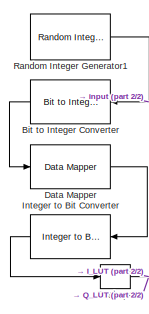
[diagram: root canvas - part 1/2, middle left region]
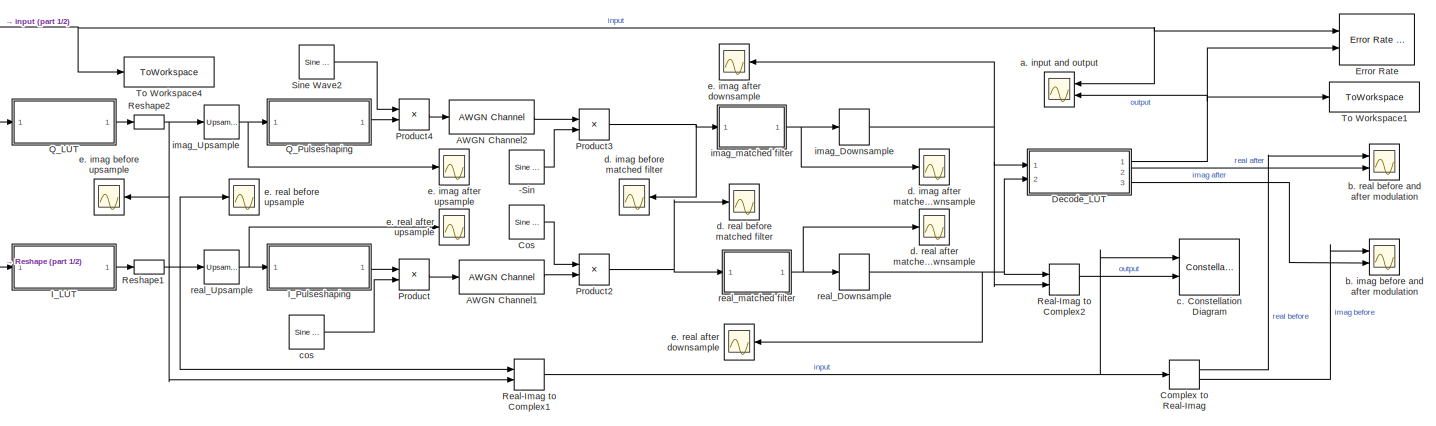
[diagram: root canvas - part 2/2, most of the canvas]
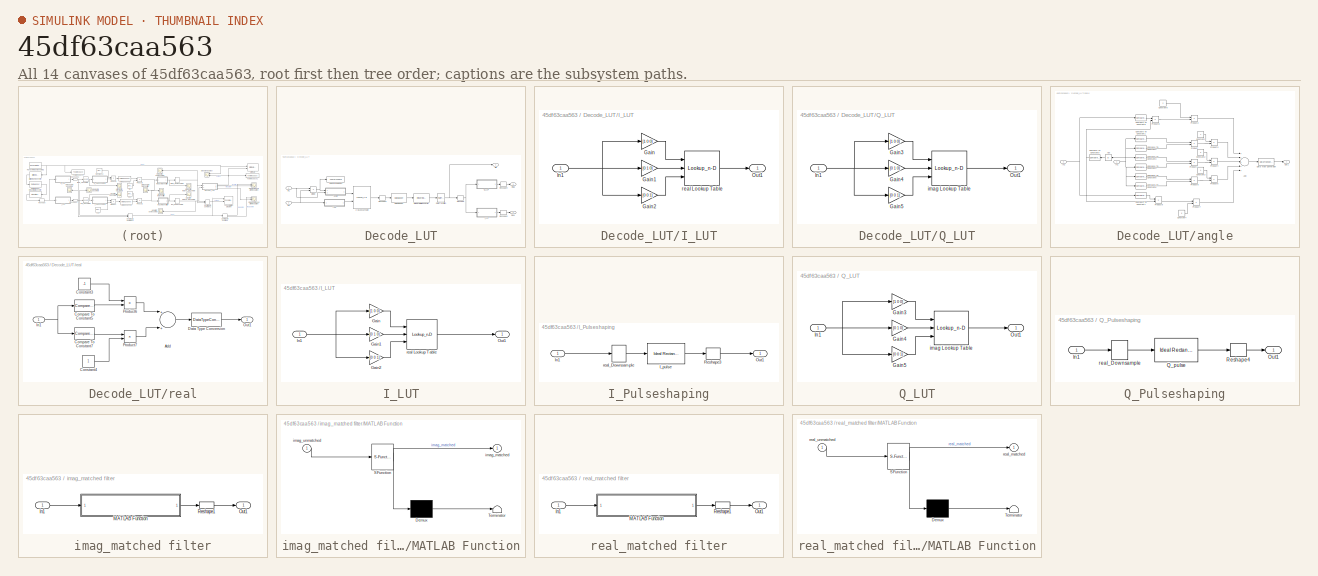
[diagram: thumbnail index - all 14 canvases of the model, root first then tree order]
MODEL slx_45df63caa563
KIND model
CONFIG AbsTol = auto
CONFIG EnableMultiTasking = off
CONFIG FixedStep = auto
CONFIG MaxStep = auto
CONFIG MinStep = auto
CONFIG RelTol = 1e-3
CONFIG SampleTimeConstraint = Unconstrained
CONFIG Solver = VariableStepAuto
CONFIG SolverName = VariableStepAuto
CONFIG StartTime = 0.0
CONFIG StopTime = 10
BLOCK [Reference] -Sin  REF=dspsrcs4/Sine Wave
  Ports = [0, 1]
  SourceBlock = dspsrcs4/Sine Wave
  SourceProductBaseCode = DS
  SourceProductName = DSP System Toolbox
  SourceType = Sine Wave
BLOCK [Reference] AWGN Channel1  REF=commchan3/AWGN
Channel
  Ports = [1, 1]
  SourceBlock = commchan3/AWGN\nChannel
  SourceProductBaseCode = CM
  SourceProductName = Communications Toolbox
  SourceType = AWGN Channel
  UserDataPersistent = on
BLOCK [Reference] AWGN Channel2  REF=commchan3/AWGN
Channel
  Ports = [1, 1]
  SourceBlock = commchan3/AWGN\nChannel
  SourceProductBaseCode = CM
  SourceProductName = Communications Toolbox
  SourceType = AWGN Channel
  UserDataPersistent = on
BLOCK [Reference] Bit to Integer Converter  REF=commutil2/Bit to Integer
Converter
  Ports = [1, 1]
  SourceBlock = commutil2/Bit to Integer\nConverter
  SourceProductBaseCode = CM
  SourceProductName = Communications Toolbox
  SourceType = Bit to Integer Converter
BLOCK [ComplexToRealImag] Complex to Real-Imag
  Ports = [1, 2]
BLOCK [Reference] Cos  REF=dspsrcs4/Sine Wave
  Ports = [0, 1]
  SourceBlock = dspsrcs4/Sine Wave
  SourceProductBaseCode = DS
  SourceProductName = DSP System Toolbox
  SourceType = Sine Wave
BLOCK [Reference] Data Mapper  REF=commutil2/Data Mapper
  Ports = [1, 1]
  SourceBlock = commutil2/Data Mapper
  SourceProductBaseCode = CM
  SourceProductName = Communications Toolbox
  SourceType = Data Mapper
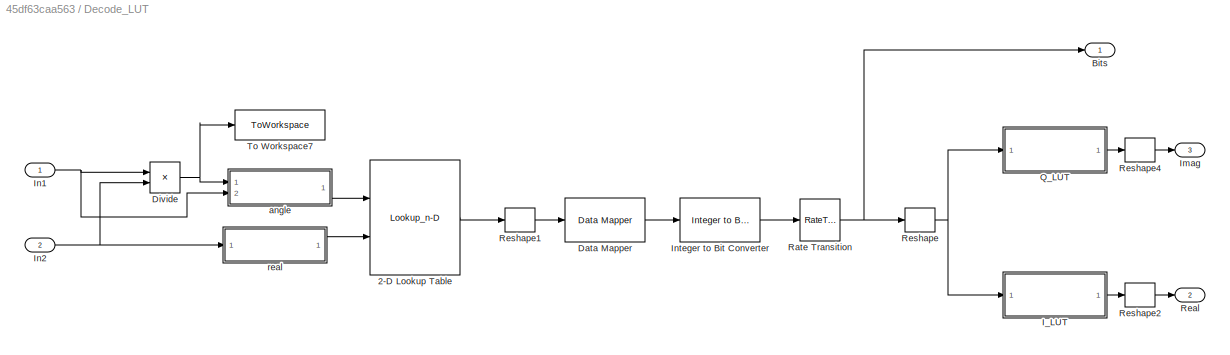
BLOCK [SubSystem] Decode_LUT
  Ports = [2, 3]
  RequestExecContextInheritance = off
BLOCK [Lookup_n-D] Decode_LUT/2-D Lookup Table
  BreakpointsForDimension1 = [-2,-1,0,1,2]
  BreakpointsForDimension2 = [-1,1]
  InternalRulePriority = Speed
  Ports = [2, 1]
  RndMeth = Simplest
  Table = reshape([5,2,6,7,3,5,4,0,1,3],5,2)
BLOCK [Outport] Decode_LUT/Bits
  IconDisplay = Port number
BLOCK [Reference] Decode_LUT/Data Mapper  REF=commutil2/Data Mapper
  Ports = [1, 1]
  SourceBlock = commutil2/Data Mapper
  SourceProductBaseCode = CM
  SourceProductName = Communications Toolbox
  SourceType = Data Mapper
BLOCK [Product] Decode_LUT/Divide
  InputSameDT = off
  Inputs = */
  OutDataTypeStr = Inherit: Inherit via internal rule
  Ports = [2, 1]
  RndMeth = Floor
  SaturateOnIntegerOverflow = off
BLOCK [SubSystem] Decode_LUT/I_LUT
  Ports = [1, 1]
  RequestExecContextInheritance = off
BLOCK [Gain] Decode_LUT/I_LUT/Gain
  Gain = [1 0 0]
  Multiplication = Matrix(K*u)
  OutDataTypeStr = Inherit: Inherit via internal rule
  ParamDataTypeStr = Inherit: Inherit via internal rule
  SaturateOnIntegerOverflow = off
BLOCK [Gain] Decode_LUT/I_LUT/Gain1
  Gain = [0 1 0]
  Multiplication = Matrix(K*u)
  OutDataTypeStr = Inherit: Inherit via internal rule
  ParamDataTypeStr = Inherit: Inherit via internal rule
  SaturateOnIntegerOverflow = off
BLOCK [Gain] Decode_LUT/I_LUT/Gain2
  Gain = [0 0 1]
  Multiplication = Matrix(K*u)
  OutDataTypeStr = Inherit: Inherit via internal rule
  ParamDataTypeStr = Inherit: Inherit via internal rule
  SaturateOnIntegerOverflow = off
BLOCK [Inport] Decode_LUT/I_LUT/In1
  IconDisplay = Port number
BLOCK [Outport] Decode_LUT/I_LUT/Out1
  IconDisplay = Port number
BLOCK [Lookup_n-D] Decode_LUT/I_LUT/real Lookup Table
  BreakpointsForDimension1 = [0,1]
  BreakpointsForDimension2 = [0,1]
  BreakpointsForDimension3 = [0,1]
  InternalRulePriority = Speed
  NumberOfTableDimensions = 3
  Ports = [3, 1]
  RndMeth = Simplest
  Table = reshape([1,sqrt(2)/2,-sqrt(2)/2,-1,sqrt(2)/2,0,0,-sqrt(2)/2],2,2,2)
BLOCK [Outport] Decode_LUT/Imag
  IconDisplay = Port number
  Port = 3
BLOCK [Inport] Decode_LUT/In1
  IconDisplay = Port number
BLOCK [Inport] Decode_LUT/In2
  IconDisplay = Port number
  Port = 2
BLOCK [Reference] Decode_LUT/Integer to Bit Converter  REF=commutil2/Integer to Bit
Converter
  Ports = [1, 1]
  SourceBlock = commutil2/Integer to Bit\nConverter
  SourceProductBaseCode = CM
  SourceProductName = Communications Toolbox
  SourceType = Integer to Bit Converter
BLOCK [SubSystem] Decode_LUT/Q_LUT
  Ports = [1, 1]
  RequestExecContextInheritance = off
BLOCK [Gain] Decode_LUT/Q_LUT/Gain3
  Gain = [1 0 0]
  Multiplication = Matrix(K*u)
  OutDataTypeStr = Inherit: Inherit via internal rule
  ParamDataTypeStr = Inherit: Inherit via internal rule
  SaturateOnIntegerOverflow = off
BLOCK [Gain] Decode_LUT/Q_LUT/Gain4
  Gain = [0 1 0]
  Multiplication = Matrix(K*u)
  OutDataTypeStr = Inherit: Inherit via internal rule
  ParamDataTypeStr = Inherit: Inherit via internal rule
  SaturateOnIntegerOverflow = off
BLOCK [Gain] Decode_LUT/Q_LUT/Gain5
  Gain = [0 0 1]
  Multiplication = Matrix(K*u)
  OutDataTypeStr = Inherit: Inherit via internal rule
  ParamDataTypeStr = Inherit: Inherit via internal rule
  SaturateOnIntegerOverflow = off
BLOCK [Inport] Decode_LUT/Q_LUT/In1
  IconDisplay = Port number
BLOCK [Outport] Decode_LUT/Q_LUT/Out1
  IconDisplay = Port number
BLOCK [Lookup_n-D] Decode_LUT/Q_LUT/imag Lookup Table
  BreakpointsForDimension1 = [0,1]
  BreakpointsForDimension2 = [0,1]
  BreakpointsForDimension3 = [0,1]
  InternalRulePriority = Speed
  NumberOfTableDimensions = 3
  Ports = [3, 1]
  RndMeth = Simplest
  Table = reshape([0,-sqrt(2)/2,sqrt(2)/2,0,sqrt(2)/2,-1,1,-sqrt(2)/2],2,2,2)
BLOCK [RateTransition] Decode_LUT/Rate Transition
  OutPortSampleTime = 300
BLOCK [Outport] Decode_LUT/Real
  IconDisplay = Port number
  Port = 2
BLOCK [Reshape] Decode_LUT/Reshape
  OutputDimensionality = Customize
  OutputDimensions = [3,100]
  Ports = [1, 1]
BLOCK [Reshape] Decode_LUT/Reshape1
  OutputDimensionality = Customize
  OutputDimensions = [100,1]
  Ports = [1, 1]
BLOCK [Reshape] Decode_LUT/Reshape2
  OutputDimensionality = Customize
  OutputDimensions = [100,1]
  Ports = [1, 1]
BLOCK [Reshape] Decode_LUT/Reshape4
  OutputDimensionality = Customize
  OutputDimensions = [100,1]
  Ports = [1, 1]
BLOCK [ToWorkspace] Decode_LUT/To Workspace7
  FixptAsFi = on
  MaxDataPoints = inf
  Ports = [1]
  SampleTime = -1
  Save2DSignal = 2-D array (concatenate along first dimension)
  VariableName = angle
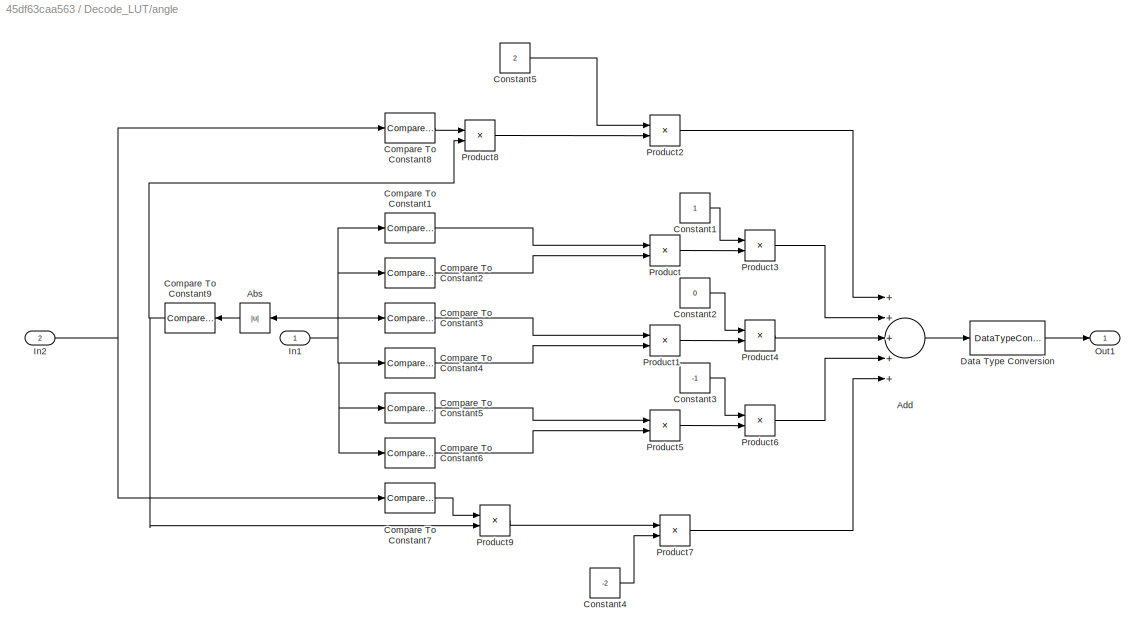
BLOCK [SubSystem] Decode_LUT/angle
  Ports = [2, 1]
  RequestExecContextInheritance = off
BLOCK [Abs] Decode_LUT/angle/Abs
  SaturateOnIntegerOverflow = off
BLOCK [Sum] Decode_LUT/angle/Add
  InputSameDT = off
  Inputs = +++++
  OutDataTypeStr = Inherit: Inherit via internal rule
  Ports = [5, 1]
  SaturateOnIntegerOverflow = off
BLOCK [Reference] Decode_LUT/angle/Compare To Constant1  REF=simulink/Logic and Bit
Operations/Compare
To Constant
  Ports = [1, 1]
  SourceBlock = simulink/Logic and Bit\nOperations/Compare\nTo Constant
  SourceProductBaseCode = SL
  SourceProductName = Simulink
  SourceType = Compare To Constant
BLOCK [Reference] Decode_LUT/angle/Compare To Constant2  REF=simulink/Logic and Bit
Operations/Compare
To Constant
  Ports = [1, 1]
  SourceBlock = simulink/Logic and Bit\nOperations/Compare\nTo Constant
  SourceProductBaseCode = SL
  SourceProductName = Simulink
  SourceType = Compare To Constant
BLOCK [Reference] Decode_LUT/angle/Compare To Constant3  REF=simulink/Logic and Bit
Operations/Compare
To Constant
  Ports = [1, 1]
  SourceBlock = simulink/Logic and Bit\nOperations/Compare\nTo Constant
  SourceProductBaseCode = SL
  SourceProductName = Simulink
  SourceType = Compare To Constant
BLOCK [Reference] Decode_LUT/angle/Compare To Constant4  REF=simulink/Logic and Bit
Operations/Compare
To Constant
  Ports = [1, 1]
  SourceBlock = simulink/Logic and Bit\nOperations/Compare\nTo Constant
  SourceProductBaseCode = SL
  SourceProductName = Simulink
  SourceType = Compare To Constant
BLOCK [Reference] Decode_LUT/angle/Compare To Constant5  REF=simulink/Logic and Bit
Operations/Compare
To Constant
  Ports = [1, 1]
  SourceBlock = simulink/Logic and Bit\nOperations/Compare\nTo Constant
  SourceProductBaseCode = SL
  SourceProductName = Simulink
  SourceType = Compare To Constant
BLOCK [Reference] Decode_LUT/angle/Compare To Constant6  REF=simulink/Logic and Bit
Operations/Compare
To Constant
  Ports = [1, 1]
  SourceBlock = simulink/Logic and Bit\nOperations/Compare\nTo Constant
  SourceProductBaseCode = SL
  SourceProductName = Simulink
  SourceType = Compare To Constant
BLOCK [Reference] Decode_LUT/angle/Compare To Constant7  REF=simulink/Logic and Bit
Operations/Compare
To Constant
  Ports = [1, 1]
  SourceBlock = simulink/Logic and Bit\nOperations/Compare\nTo Constant
  SourceProductBaseCode = SL
  SourceProductName = Simulink
  SourceType = Compare To Constant
BLOCK [Reference] Decode_LUT/angle/Compare To Constant8  REF=simulink/Logic and Bit
Operations/Compare
To Constant
  Ports = [1, 1]
  SourceBlock = simulink/Logic and Bit\nOperations/Compare\nTo Constant
  SourceProductBaseCode = SL
  SourceProductName = Simulink
  SourceType = Compare To Constant
BLOCK [Reference] Decode_LUT/angle/Compare To Constant9  REF=simulink/Logic and Bit
Operations/Compare
To Constant
  Ports = [1, 1]
  SourceBlock = simulink/Logic and Bit\nOperations/Compare\nTo Constant
  SourceProductBaseCode = SL
  SourceProductName = Simulink
  SourceType = Compare To Constant
BLOCK [Constant] Decode_LUT/angle/Constant1
BLOCK [Constant] Decode_LUT/angle/Constant2
  Value = 0
BLOCK [Constant] Decode_LUT/angle/Constant3
  Value = -1
BLOCK [Constant] Decode_LUT/angle/Constant4
  Value = -2
BLOCK [Constant] Decode_LUT/angle/Constant5
  Value = 2
BLOCK [DataTypeConversion] Decode_LUT/angle/Data Type Conversion
  OutDataTypeStr = double
  RndMeth = Floor
  SaturateOnIntegerOverflow = off
BLOCK [Inport] Decode_LUT/angle/In1
  IconDisplay = Port number
BLOCK [Inport] Decode_LUT/angle/In2
  IconDisplay = Port number
  Port = 2
BLOCK [Outport] Decode_LUT/angle/Out1
  IconDisplay = Port number
BLOCK [Product] Decode_LUT/angle/Product
  InputSameDT = off
  OutDataTypeStr = Inherit: Inherit via internal rule
  Ports = [2, 1]
  RndMeth = Floor
  SaturateOnIntegerOverflow = off
BLOCK [Product] Decode_LUT/angle/Product1
  InputSameDT = off
  OutDataTypeStr = Inherit: Inherit via internal rule
  Ports = [2, 1]
  RndMeth = Floor
  SaturateOnIntegerOverflow = off
BLOCK [Product] Decode_LUT/angle/Product2
  InputSameDT = off
  OutDataTypeStr = Inherit: Inherit via internal rule
  Ports = [2, 1]
  RndMeth = Floor
  SaturateOnIntegerOverflow = off
BLOCK [Product] Decode_LUT/angle/Product3
  InputSameDT = off
  OutDataTypeStr = Inherit: Inherit via internal rule
  Ports = [2, 1]
  RndMeth = Floor
  SaturateOnIntegerOverflow = off
BLOCK [Product] Decode_LUT/angle/Product4
  InputSameDT = off
  OutDataTypeStr = Inherit: Inherit via internal rule
  Ports = [2, 1]
  RndMeth = Floor
  SaturateOnIntegerOverflow = off
BLOCK [Product] Decode_LUT/angle/Product5
  InputSameDT = off
  OutDataTypeStr = Inherit: Inherit via internal rule
  Ports = [2, 1]
  RndMeth = Floor
  SaturateOnIntegerOverflow = off
BLOCK [Product] Decode_LUT/angle/Product6
  InputSameDT = off
  OutDataTypeStr = Inherit: Inherit via internal rule
  Ports = [2, 1]
  RndMeth = Floor
  SaturateOnIntegerOverflow = off
BLOCK [Product] Decode_LUT/angle/Product7
  InputSameDT = off
  OutDataTypeStr = Inherit: Inherit via internal rule
  Ports = [2, 1]
  RndMeth = Floor
  SaturateOnIntegerOverflow = off
BLOCK [Product] Decode_LUT/angle/Product8
  InputSameDT = off
  OutDataTypeStr = Inherit: Inherit via internal rule
  Ports = [2, 1]
  RndMeth = Floor
  SaturateOnIntegerOverflow = off
BLOCK [Product] Decode_LUT/angle/Product9
  InputSameDT = off
  OutDataTypeStr = Inherit: Inherit via internal rule
  Ports = [2, 1]
  RndMeth = Floor
  SaturateOnIntegerOverflow = off
BLOCK [SubSystem] Decode_LUT/real
  Ports = [1, 1]
  RequestExecContextInheritance = off
BLOCK [Sum] Decode_LUT/real/Add
  InputSameDT = off
  OutDataTypeStr = Inherit: Inherit via internal rule
  Ports = [2, 1]
  SaturateOnIntegerOverflow = off
BLOCK [Reference] Decode_LUT/real/Compare To Constant5  REF=simulink/Logic and Bit
Operations/Compare
To Constant
  Ports = [1, 1]
  SourceBlock = simulink/Logic and Bit\nOperations/Compare\nTo Constant
  SourceProductBaseCode = SL
  SourceProductName = Simulink
  SourceType = Compare To Constant
BLOCK [Reference] Decode_LUT/real/Compare To Constant7  REF=simulink/Logic and Bit
Operations/Compare
To Constant
  Ports = [1, 1]
  SourceBlock = simulink/Logic and Bit\nOperations/Compare\nTo Constant
  SourceProductBaseCode = SL
  SourceProductName = Simulink
  SourceType = Compare To Constant
BLOCK [Constant] Decode_LUT/real/Constant3
  Value = -1
BLOCK [Constant] Decode_LUT/real/Constant4
BLOCK [DataTypeConversion] Decode_LUT/real/Data Type Conversion
  OutDataTypeStr = double
  RndMeth = Floor
  SaturateOnIntegerOverflow = off
BLOCK [Inport] Decode_LUT/real/In1
  IconDisplay = Port number
BLOCK [Outport] Decode_LUT/real/Out1
  IconDisplay = Port number
BLOCK [Product] Decode_LUT/real/Product6
  InputSameDT = off
  OutDataTypeStr = Inherit: Inherit via internal rule
  Ports = [2, 1]
  RndMeth = Floor
  SaturateOnIntegerOverflow = off
BLOCK [Product] Decode_LUT/real/Product7
  InputSameDT = off
  OutDataTypeStr = Inherit: Inherit via internal rule
  Ports = [2, 1]
  RndMeth = Floor
  SaturateOnIntegerOverflow = off
BLOCK [Reference] Error Rate  REF=commsink2/Error Rate
Calculation
  Ports = [2]
  SourceBlock = commsink2/Error Rate\nCalculation
  SourceProductBaseCode = CM
  SourceProductName = Communications Toolbox
  SourceType = Error Rate Calculation
BLOCK [SubSystem] I_LUT
  Ports = [1, 1]
  RequestExecContextInheritance = off
BLOCK [Gain] I_LUT/Gain
  Gain = [1 0 0]
  Multiplication = Matrix(K*u)
  OutDataTypeStr = Inherit: Inherit via internal rule
  ParamDataTypeStr = Inherit: Inherit via internal rule
  SaturateOnIntegerOverflow = off
BLOCK [Gain] I_LUT/Gain1
  Gain = [0 1 0]
  Multiplication = Matrix(K*u)
  OutDataTypeStr = Inherit: Inherit via internal rule
  ParamDataTypeStr = Inherit: Inherit via internal rule
  SaturateOnIntegerOverflow = off
BLOCK [Gain] I_LUT/Gain2
  Gain = [0 0 1]
  Multiplication = Matrix(K*u)
  OutDataTypeStr = Inherit: Inherit via internal rule
  ParamDataTypeStr = Inherit: Inherit via internal rule
  SaturateOnIntegerOverflow = off
BLOCK [Inport] I_LUT/In1
  IconDisplay = Port number
BLOCK [Outport] I_LUT/Out1
  IconDisplay = Port number
BLOCK [Lookup_n-D] I_LUT/real Lookup Table
  BreakpointsForDimension1 = [0,1]
  BreakpointsForDimension2 = [0,1]
  BreakpointsForDimension3 = [0,1]
  InternalRulePriority = Speed
  NumberOfTableDimensions = 3
  Ports = [3, 1]
  RndMeth = Simplest
  Table = reshape([1,sqrt(2)/2,-sqrt(2)/2,-1,sqrt(2)/2,0,0,-sqrt(2)/2],2,2,2)
BLOCK [SubSystem] I_Pulseshaping
  Ports = [1, 1]
  RequestExecContextInheritance = off
BLOCK [Reference] I_Pulseshaping/I_pulse  REF=commfilt2/Ideal Rectangular
Pulse Filter
  Ports = [1, 1]
  SourceBlock = commfilt2/Ideal Rectangular\nPulse Filter
  SourceProductBaseCode = CM
  SourceProductName = Communications Toolbox
  SourceType = Ideal Rectangular Pulse Filter
  UserDataPersistent = on
BLOCK [Inport] I_Pulseshaping/In1
  IconDisplay = Port number
BLOCK [Outport] I_Pulseshaping/Out1
  IconDisplay = Port number
BLOCK [Reshape] I_Pulseshaping/Reshape3
  OutputDimensionality = Customize
  OutputDimensions = [8000,1]
  Ports = [1, 1]
BLOCK [DownSample] I_Pulseshaping/real_Downsample
  N = 80
BLOCK [Reference] Integer to Bit Converter  REF=commutil2/Integer to Bit
Converter
  Ports = [1, 1]
  SourceBlock = commutil2/Integer to Bit\nConverter
  SourceProductBaseCode = CM
  SourceProductName = Communications Toolbox
  SourceType = Integer to Bit Converter
BLOCK [Product] Product
  InputSameDT = off
  OutDataTypeStr = Inherit: Inherit via internal rule
  Ports = [2, 1]
  RndMeth = Floor
  SaturateOnIntegerOverflow = off
BLOCK [Product] Product2
  InputSameDT = off
  OutDataTypeStr = Inherit: Inherit via internal rule
  Ports = [2, 1]
  RndMeth = Floor
  SaturateOnIntegerOverflow = off
BLOCK [Product] Product3
  InputSameDT = off
  OutDataTypeStr = Inherit: Inherit via internal rule
  Ports = [2, 1]
  RndMeth = Floor
  SaturateOnIntegerOverflow = off
BLOCK [Product] Product4
  InputSameDT = off
  OutDataTypeStr = Inherit: Inherit via internal rule
  Ports = [2, 1]
  RndMeth = Floor
  SaturateOnIntegerOverflow = off
BLOCK [SubSystem] Q_LUT
  Ports = [1, 1]
  RequestExecContextInheritance = off
BLOCK [Gain] Q_LUT/Gain3
  Gain = [1 0 0]
  Multiplication = Matrix(K*u)
  OutDataTypeStr = Inherit: Inherit via internal rule
  ParamDataTypeStr = Inherit: Inherit via internal rule
  SaturateOnIntegerOverflow = off
BLOCK [Gain] Q_LUT/Gain4
  Gain = [0 1 0]
  Multiplication = Matrix(K*u)
  OutDataTypeStr = Inherit: Inherit via internal rule
  ParamDataTypeStr = Inherit: Inherit via internal rule
  SaturateOnIntegerOverflow = off
BLOCK [Gain] Q_LUT/Gain5
  Gain = [0 0 1]
  Multiplication = Matrix(K*u)
  OutDataTypeStr = Inherit: Inherit via internal rule
  ParamDataTypeStr = Inherit: Inherit via internal rule
  SaturateOnIntegerOverflow = off
BLOCK [Inport] Q_LUT/In1
  IconDisplay = Port number
BLOCK [Outport] Q_LUT/Out1
  IconDisplay = Port number
BLOCK [Lookup_n-D] Q_LUT/imag Lookup Table
  BreakpointsForDimension1 = [0,1]
  BreakpointsForDimension2 = [0,1]
  BreakpointsForDimension3 = [0,1]
  InternalRulePriority = Speed
  NumberOfTableDimensions = 3
  Ports = [3, 1]
  RndMeth = Simplest
  Table = reshape([0,-sqrt(2)/2,sqrt(2)/2,0,sqrt(2)/2,-1,1,-sqrt(2)/2],2,2,2)
BLOCK [SubSystem] Q_Pulseshaping
  Ports = [1, 1]
  RequestExecContextInheritance = off
BLOCK [Inport] Q_Pulseshaping/In1
  IconDisplay = Port number
BLOCK [Outport] Q_Pulseshaping/Out1
  IconDisplay = Port number
BLOCK [Reference] Q_Pulseshaping/Q_pulse  REF=commfilt2/Ideal Rectangular
Pulse Filter
  Ports = [1, 1]
  SourceBlock = commfilt2/Ideal Rectangular\nPulse Filter
  SourceProductBaseCode = CM
  SourceProductName = Communications Toolbox
  SourceType = Ideal Rectangular Pulse Filter
  UserDataPersistent = on
BLOCK [Reshape] Q_Pulseshaping/Reshape4
  OutputDimensionality = Customize
  OutputDimensions = [8000,1]
  Ports = [1, 1]
BLOCK [DownSample] Q_Pulseshaping/real_Downsample
  N = 80
BLOCK [Reference] Random Integer Generator1  REF=commrandsrc3/Random Integer
Generator
  Ports = [0, 1]
  SourceBlock = commrandsrc3/Random Integer\nGenerator
  SourceProductBaseCode = CM
  SourceProductName = Communications Toolbox
  SourceType = Random Integer Generator
BLOCK [RealImagToComplex] Real-Imag to Complex1
  Ports = [2, 1]
BLOCK [RealImagToComplex] Real-Imag to Complex2
  Ports = [2, 1]
BLOCK [Reshape] Reshape
  OutputDimensionality = Customize
  OutputDimensions = [3,100]
  Ports = [1, 1]
BLOCK [Reshape] Reshape1
  OutputDimensionality = Customize
  OutputDimensions = [100,1]
  Ports = [1, 1]
BLOCK [Reshape] Reshape2
  OutputDimensionality = Customize
  OutputDimensions = [100,1]
  Ports = [1, 1]
BLOCK [Reference] Sine Wave2  REF=dspsrcs4/Sine Wave
  Ports = [0, 1]
  SourceBlock = dspsrcs4/Sine Wave
  SourceProductBaseCode = DS
  SourceProductName = DSP System Toolbox
  SourceType = Sine Wave
BLOCK [ToWorkspace] To Workspace1
  FixptAsFi = on
  MaxDataPoints = inf
  Ports = [1]
  SampleTime = -1
  VariableName = out
BLOCK [ToWorkspace] To Workspace4
  FixptAsFi = on
  MaxDataPoints = inf
  Ports = [1]
  SampleTime = -1
  Save2DSignal = 2-D array (concatenate along first dimension)
  VariableName = in
BLOCK [Scope] a. input and output
  DefaultConfigurationName = spbscopes.TimeScopeBlockCfg
  Floating = off
  NumInputPorts = 2
  Ports = [2]
  ScopeSpecificationString = spbscopes.TimeScopeBlockCfg('CurrentConfiguration', extmgr.ConfigurationSet(extmgr.Configuration('Core','General UI',true,'FigureColor',[1 1 1]),extmgr.Configuration('Core','Source UI',true),extmgr.Configuration('Sources','WiredSimulink',true,'DataLoggingVariableName','ScopeData1'),extmgr.Configuration('Visuals','Time Domain',true,'DisplayPropertyDefaults',struct('MinYLimReal','-0.125','MaxYLimRea...<+1661ch>
  UserDataPersistent = on
BLOCK [Scope] b. imag before and after modulation
  DefaultConfigurationName = spbscopes.TimeScopeBlockCfg
  Floating = off
  NumInputPorts = 2
  Ports = [2]
  ScopeSpecificationString = spbscopes.TimeScopeBlockCfg('CurrentConfiguration', extmgr.ConfigurationSet(extmgr.Configuration('Core','General UI',true,'FigureColor',[1 1 1]),extmgr.Configuration('Core','Source UI',true),extmgr.Configuration('Sources','WiredSimulink',true),extmgr.Configuration('Visuals','Time Domain',true,'DisplayPropertyDefaults',struct('MinYLimReal','-1.25','MaxYLimReal','1.25','YLabelReal','Amplitude','MinY...<+1626ch>
  UserDataPersistent = on
BLOCK [Scope] b. real before and after modulation
  DefaultConfigurationName = spbscopes.TimeScopeBlockCfg
  Floating = off
  NumInputPorts = 2
  Ports = [2]
  ScopeSpecificationString = spbscopes.TimeScopeBlockCfg('CurrentConfiguration', extmgr.ConfigurationSet(extmgr.Configuration('Core','General UI',true,'FigureColor',[1 1 1]),extmgr.Configuration('Core','Source UI',true),extmgr.Configuration('Sources','WiredSimulink',true,'DataLoggingVariableName','ScopeData12'),extmgr.Configuration('Visuals','Time Domain',true,'DisplayPropertyDefaults',struct('MinYLimReal','-1.25','MaxYLimRea...<+1666ch>
  UserDataPersistent = on
BLOCK [ConstellationDiagram] c. Constellation Diagram
  NumInputPorts = 2
  Ports = [2]
  ScopeSpecificationString = comm.scopes.ConstellationDiagramBlockCfg('CurrentConfiguration', extmgr.ConfigurationSet(extmgr.Configuration('Core','General UI',true,'FigureColor',[1 1 1]),extmgr.Configuration('Core','Source UI',true),extmgr.Configuration('Sources','WiredSimulink',true),extmgr.Configuration('Sources','Streaming',false),extmgr.Configuration('Sources','File',false),extmgr.Configuration('Sources','SimulinkEvent',f...<+2038ch>
BLOCK [Reference] cos  REF=dspsrcs4/Sine Wave
  Ports = [0, 1]
  SourceBlock = dspsrcs4/Sine Wave
  SourceProductBaseCode = DS
  SourceProductName = DSP System Toolbox
  SourceType = Sine Wave
BLOCK [Scope] d. imag after matched filter // e. before downsample
  DefaultConfigurationName = spbscopes.TimeScopeBlockCfg
  Floating = off
  NumInputPorts = 1
  Ports = [1]
  ScopeSpecificationString = spbscopes.TimeScopeBlockCfg('CurrentConfiguration', extmgr.ConfigurationSet(extmgr.Configuration('Core','General UI',true,'FigureColor',[1 1 1]),extmgr.Configuration('Core','Source UI',true),extmgr.Configuration('Sources','WiredSimulink',true,'DataLoggingVariableName','ScopeData5'),extmgr.Configuration('Visuals','Time Domain',true,'DisplayPropertyDefaults',struct('MinYLimReal','-1.42017','MaxYLimR...<+1660ch>
  UserDataPersistent = on
BLOCK [Scope] d. imag before matched filter
  DefaultConfigurationName = spbscopes.TimeScopeBlockCfg
  Floating = off
  NumInputPorts = 1
  Ports = [1]
  ScopeSpecificationString = spbscopes.TimeScopeBlockCfg('CurrentConfiguration', extmgr.ConfigurationSet(extmgr.Configuration('Core','General UI',true,'FigureColor',[1 1 1]),extmgr.Configuration('Core','Source UI',true),extmgr.Configuration('Sources','WiredSimulink',true,'DataLoggingVariableName','ScopeData8'),extmgr.Configuration('Visuals','Time Domain',true,'DisplayPropertyDefaults',struct('MinYLimReal','-8.52675','MaxYLimR...<+1649ch>
  UserDataPersistent = on
BLOCK [Scope] d. real after matched filter // e. before downsample
  DefaultConfigurationName = spbscopes.TimeScopeBlockCfg
  Floating = off
  NumInputPorts = 1
  Ports = [1]
  ScopeSpecificationString = spbscopes.TimeScopeBlockCfg('CurrentConfiguration', extmgr.ConfigurationSet(extmgr.Configuration('Core','General UI',true,'FigureColor',[1 1 1]),extmgr.Configuration('Core','Source UI',true),extmgr.Configuration('Sources','WiredSimulink',true,'DataLoggingVariableName','ScopeData4'),extmgr.Configuration('Visuals','Time Domain',true,'DisplayPropertyDefaults',struct('MinYLimReal','-2.38487','MaxYLimR...<+1660ch>
  UserDataPersistent = on
BLOCK [Scope] d. real before matched filter
  DefaultConfigurationName = spbscopes.TimeScopeBlockCfg
  Floating = off
  NumInputPorts = 1
  Ports = [1]
  ScopeSpecificationString = spbscopes.TimeScopeBlockCfg('CurrentConfiguration', extmgr.ConfigurationSet(extmgr.Configuration('Core','General UI',true,'FigureColor',[1 1 1]),extmgr.Configuration('Core','Source UI',true),extmgr.Configuration('Sources','WiredSimulink',true,'DataLoggingVariableName','ScopeData9'),extmgr.Configuration('Visuals','Time Domain',true,'DisplayPropertyDefaults',struct('MinYLimReal','-7.42452','MaxYLimR...<+1649ch>
  UserDataPersistent = on
BLOCK [Scope] e. imag after downsample
  DefaultConfigurationName = spbscopes.TimeScopeBlockCfg
  Floating = off
  NumInputPorts = 1
  Ports = [1]
  ScopeSpecificationString = spbscopes.TimeScopeBlockCfg('CurrentConfiguration', extmgr.ConfigurationSet(extmgr.Configuration('Core','General UI',true,'FigureColor',[1 1 1]),extmgr.Configuration('Core','Source UI',true),extmgr.Configuration('Sources','WiredSimulink',true,'DataLoggingVariableName','ScopeData6'),extmgr.Configuration('Visuals','Time Domain',true,'DisplayPropertyDefaults',struct('MinYLimReal','-1.39894','MaxYLimR...<+1672ch>
  UserDataPersistent = on
BLOCK [Scope] e. imag after upsample
  DefaultConfigurationName = spbscopes.TimeScopeBlockCfg
  Floating = off
  NumInputPorts = 1
  Ports = [1]
  ScopeSpecificationString = spbscopes.TimeScopeBlockCfg('CurrentConfiguration', extmgr.ConfigurationSet(extmgr.Configuration('Core','General UI',true,'FigureColor',[1 1 1]),extmgr.Configuration('Core','Source UI',true),extmgr.Configuration('Sources','WiredSimulink',true,'DataLoggingVariableName','ScopeData2'),extmgr.Configuration('Visuals','Time Domain',true,'DisplayPropertyDefaults',struct('MinYLimReal','-1.25','MaxYLimReal...<+1636ch>
  UserDataPersistent = on
BLOCK [Scope] e. imag before upsample
  DefaultConfigurationName = spbscopes.TimeScopeBlockCfg
  Floating = off
  NumInputPorts = 1
  Ports = [1]
  ScopeSpecificationString = spbscopes.TimeScopeBlockCfg('CurrentConfiguration', extmgr.ConfigurationSet(extmgr.Configuration('Core','General UI',true,'FigureColor',[1 1 1]),extmgr.Configuration('Core','Source UI',true),extmgr.Configuration('Sources','WiredSimulink',true,'DataLoggingVariableName','ScopeData10'),extmgr.Configuration('Visuals','Time Domain',true,'DisplayPropertyDefaults',struct('MinYLimReal','-1.25','MaxYLimRea...<+1652ch>
  UserDataPersistent = on
BLOCK [Scope] e. real after downsample
  DefaultConfigurationName = spbscopes.TimeScopeBlockCfg
  Floating = off
  NumInputPorts = 1
  Ports = [1]
  ScopeSpecificationString = spbscopes.TimeScopeBlockCfg('CurrentConfiguration', extmgr.ConfigurationSet(extmgr.Configuration('Core','General UI',true,'FigureColor',[1 1 1]),extmgr.Configuration('Core','Source UI',true),extmgr.Configuration('Sources','WiredSimulink',true,'DataLoggingVariableName','ScopeData7'),extmgr.Configuration('Visuals','Time Domain',true,'DisplayPropertyDefaults',struct('MinYLimReal','-1.88667','MaxYLimR...<+1672ch>
  UserDataPersistent = on
BLOCK [Scope] e. real after upsample
  DefaultConfigurationName = spbscopes.TimeScopeBlockCfg
  Floating = off
  NumInputPorts = 1
  Ports = [1]
  ScopeSpecificationString = spbscopes.TimeScopeBlockCfg('CurrentConfiguration', extmgr.ConfigurationSet(extmgr.Configuration('Core','General UI',true,'FigureColor',[1 1 1]),extmgr.Configuration('Core','Source UI',true),extmgr.Configuration('Sources','WiredSimulink',true,'DataLoggingVariableName','ScopeData3'),extmgr.Configuration('Visuals','Time Domain',true,'DisplayPropertyDefaults',struct('MinYLimReal','-1.25','MaxYLimReal...<+1637ch>
  UserDataPersistent = on
BLOCK [Scope] e. real before upsample
  DefaultConfigurationName = spbscopes.TimeScopeBlockCfg
  Floating = off
  NumInputPorts = 1
  Ports = [1]
  ScopeSpecificationString = spbscopes.TimeScopeBlockCfg('CurrentConfiguration', extmgr.ConfigurationSet(extmgr.Configuration('Core','General UI',true,'FigureColor',[1 1 1]),extmgr.Configuration('Core','Source UI',true),extmgr.Configuration('Sources','WiredSimulink',true,'DataLoggingVariableName','ScopeData11'),extmgr.Configuration('Visuals','Time Domain',true,'DisplayPropertyDefaults',struct('MinYLimReal','-1.25','MaxYLimRea...<+1652ch>
  UserDataPersistent = on
BLOCK [DownSample] imag_Downsample
  N = 80
  phase = 79
BLOCK [Reference] imag_Upsample  REF=dspsigops/Upsample
  Ports = [1, 1]
  SourceBlock = dspsigops/Upsample
  SourceProductBaseCode = DS
  SourceProductName = DSP System Toolbox
  SourceType = Upsample
  UserDataPersistent = on
BLOCK [SubSystem] imag_matched filter
  Ports = [1, 1]
  RequestExecContextInheritance = off
BLOCK [Inport] imag_matched filter/In1
  IconDisplay = Port number
BLOCK [SubSystem] imag_matched filter/MATLAB Function
  ErrorFcn = Stateflow.Translate.translate
  PermitHierarchicalResolution = ExplicitOnly
  Ports = [1, 1]
  RequestExecContextInheritance = off
  SFBlockType = MATLAB Function
  TreatAsAtomicUnit = on
BLOCK [Demux] imag_matched filter/MATLAB Function/ Demux 
  Outputs = 1
  Ports = [1, 1]
BLOCK [S-Function] imag_matched filter/MATLAB Function/ SFunction 
  EnableBusSupport = on
  FunctionName = sf_sfun
  PortCounts = [1 2]
  Ports = [1, 2]
  SFcnIsStateOwnerBlock = off
  SFunctionDeploymentMode = off
  Tag = Stateflow S-Function 2
BLOCK [Terminator] imag_matched filter/MATLAB Function/ Terminator 
BLOCK [Outport] imag_matched filter/MATLAB Function/imag_matched
  IconDisplay = Port number
BLOCK [Inport] imag_matched filter/MATLAB Function/imag_unmatched
  IconDisplay = Port number
BLOCK [Outport] imag_matched filter/Out1
  IconDisplay = Port number
BLOCK [Reshape] imag_matched filter/Reshape1
  OutputDimensionality = Customize
  OutputDimensions = [8000,1]
  Ports = [1, 1]
BLOCK [DownSample] real_Downsample
  N = 80
  phase = 79
BLOCK [Reference] real_Upsample   REF=dspsigops/Upsample
  Ports = [1, 1]
  SourceBlock = dspsigops/Upsample
  SourceProductBaseCode = DS
  SourceProductName = DSP System Toolbox
  SourceType = Upsample
  UserDataPersistent = on
BLOCK [SubSystem] real_matched filter
  Ports = [1, 1]
  RequestExecContextInheritance = off
BLOCK [Inport] real_matched filter/In1
  IconDisplay = Port number
BLOCK [SubSystem] real_matched filter/MATLAB Function
  ErrorFcn = Stateflow.Translate.translate
  PermitHierarchicalResolution = ExplicitOnly
  Ports = [1, 1]
  RequestExecContextInheritance = off
  SFBlockType = MATLAB Function
  TreatAsAtomicUnit = on
BLOCK [Demux] real_matched filter/MATLAB Function/ Demux 
  Outputs = 1
  Ports = [1, 1]
BLOCK [S-Function] real_matched filter/MATLAB Function/ SFunction 
  EnableBusSupport = on
  FunctionName = sf_sfun
  PortCounts = [1 2]
  Ports = [1, 2]
  SFcnIsStateOwnerBlock = off
  SFunctionDeploymentMode = off
  Tag = Stateflow S-Function 1
BLOCK [Terminator] real_matched filter/MATLAB Function/ Terminator 
BLOCK [Outport] real_matched filter/MATLAB Function/real_matched
  IconDisplay = Port number
BLOCK [Inport] real_matched filter/MATLAB Function/real_unmatched
  IconDisplay = Port number
BLOCK [Outport] real_matched filter/Out1
  IconDisplay = Port number
BLOCK [Reshape] real_matched filter/Reshape1
  OutputDimensionality = Customize
  OutputDimensions = [8000,1]
  Ports = [1, 1]
LINE -Sin:1 -> Product3:2
LINE AWGN Channel1:1 -> Product2:2
LINE AWGN Channel2:1 -> Product3:1
LINE Bit to Integer Converter:1 -> Data Mapper:1
LINE Complex to Real-Imag:1 -> b. real before and after modulation:1
LINE Complex to Real-Imag:2 -> b. imag before and after modulation:1
LINE Cos:1 -> Product2:1
LINE Data Mapper:1 -> Integer to Bit Converter:1
LINE Decode_LUT/2-D Lookup Table:1 -> Decode_LUT/Reshape1:1
LINE Decode_LUT/Data Mapper:1 -> Decode_LUT/Integer to Bit Converter:1
NET Decode_LUT/Divide:1 -> Decode_LUT/To Workspace7:1, Decode_LUT/angle:1
LINE Decode_LUT/I_LUT/Gain1:1 -> Decode_LUT/I_LUT/real Lookup Table:2
LINE Decode_LUT/I_LUT/Gain2:1 -> Decode_LUT/I_LUT/real Lookup Table:3
LINE Decode_LUT/I_LUT/Gain:1 -> Decode_LUT/I_LUT/real Lookup Table:1
NET Decode_LUT/I_LUT/In1:1 -> Decode_LUT/I_LUT/Gain1:1, Decode_LUT/I_LUT/Gain2:1, Decode_LUT/I_LUT/Gain:1
LINE Decode_LUT/I_LUT/real Lookup Table:1 -> Decode_LUT/I_LUT/Out1:1
LINE Decode_LUT/I_LUT:1 -> Decode_LUT/Reshape2:1
NET Decode_LUT/In1:1 -> Decode_LUT/Divide:1, Decode_LUT/angle:2
NET Decode_LUT/In2:1 -> Decode_LUT/Divide:2, Decode_LUT/real:1
LINE Decode_LUT/Integer to Bit Converter:1 -> Decode_LUT/Rate Transition:1
LINE Decode_LUT/Q_LUT/Gain3:1 -> Decode_LUT/Q_LUT/imag Lookup Table:1
LINE Decode_LUT/Q_LUT/Gain4:1 -> Decode_LUT/Q_LUT/imag Lookup Table:2
LINE Decode_LUT/Q_LUT/Gain5:1 -> Decode_LUT/Q_LUT/imag Lookup Table:3
NET Decode_LUT/Q_LUT/In1:1 -> Decode_LUT/Q_LUT/Gain3:1, Decode_LUT/Q_LUT/Gain4:1, Decode_LUT/Q_LUT/Gain5:1
LINE Decode_LUT/Q_LUT/imag Lookup Table:1 -> Decode_LUT/Q_LUT/Out1:1
LINE Decode_LUT/Q_LUT:1 -> Decode_LUT/Reshape4:1
NET Decode_LUT/Rate Transition:1 -> Decode_LUT/Bits:1, Decode_LUT/Reshape:1
LINE Decode_LUT/Reshape1:1 -> Decode_LUT/Data Mapper:1
LINE Decode_LUT/Reshape2:1 -> Decode_LUT/Real:1
LINE Decode_LUT/Reshape4:1 -> Decode_LUT/Imag:1
NET Decode_LUT/Reshape:1 -> Decode_LUT/I_LUT:1, Decode_LUT/Q_LUT:1
LINE Decode_LUT/angle/Abs:1 -> Decode_LUT/angle/Compare To Constant9:1
LINE Decode_LUT/angle/Add:1 -> Decode_LUT/angle/Data Type Conversion:1
LINE Decode_LUT/angle/Compare To Constant1:1 -> Decode_LUT/angle/Product:1
LINE Decode_LUT/angle/Compare To Constant2:1 -> Decode_LUT/angle/Product:2
LINE Decode_LUT/angle/Compare To Constant3:1 -> Decode_LUT/angle/Product1:1
LINE Decode_LUT/angle/Compare To Constant4:1 -> Decode_LUT/angle/Product1:2
LINE Decode_LUT/angle/Compare To Constant5:1 -> Decode_LUT/angle/Product5:1
LINE Decode_LUT/angle/Compare To Constant6:1 -> Decode_LUT/angle/Product5:2
LINE Decode_LUT/angle/Compare To Constant7:1 -> Decode_LUT/angle/Product9:1
LINE Decode_LUT/angle/Compare To Constant8:1 -> Decode_LUT/angle/Product8:1
NET Decode_LUT/angle/Compare To Constant9:1 -> Decode_LUT/angle/Product8:2, Decode_LUT/angle/Product9:2
LINE Decode_LUT/angle/Constant1:1 -> Decode_LUT/angle/Product3:1
LINE Decode_LUT/angle/Constant2:1 -> Decode_LUT/angle/Product4:1
LINE Decode_LUT/angle/Constant3:1 -> Decode_LUT/angle/Product6:1
LINE Decode_LUT/angle/Constant4:1 -> Decode_LUT/angle/Product7:2
LINE Decode_LUT/angle/Constant5:1 -> Decode_LUT/angle/Product2:1
LINE Decode_LUT/angle/Data Type Conversion:1 -> Decode_LUT/angle/Out1:1
NET Decode_LUT/angle/In1:1 -> Decode_LUT/angle/Abs:1, Decode_LUT/angle/Compare To Constant1:1, Decode_LUT/angle/Compare To Constant2:1, Decode_LUT/angle/Compare To Constant3:1, Decode_LUT/angle/Compare To Constant4:1, Decode_LUT/angle/Compare To Constant5:1, Decode_LUT/angle/Compare To Constant6:1
NET Decode_LUT/angle/In2:1 -> Decode_LUT/angle/Compare To Constant7:1, Decode_LUT/angle/Compare To Constant8:1
LINE Decode_LUT/angle/Product1:1 -> Decode_LUT/angle/Product4:2
LINE Decode_LUT/angle/Product2:1 -> Decode_LUT/angle/Add:1
LINE Decode_LUT/angle/Product3:1 -> Decode_LUT/angle/Add:2
LINE Decode_LUT/angle/Product4:1 -> Decode_LUT/angle/Add:3
LINE Decode_LUT/angle/Product5:1 -> Decode_LUT/angle/Product6:2
LINE Decode_LUT/angle/Product6:1 -> Decode_LUT/angle/Add:4
LINE Decode_LUT/angle/Product7:1 -> Decode_LUT/angle/Add:5
LINE Decode_LUT/angle/Product8:1 -> Decode_LUT/angle/Product2:2
LINE Decode_LUT/angle/Product9:1 -> Decode_LUT/angle/Product7:1
LINE Decode_LUT/angle/Product:1 -> Decode_LUT/angle/Product3:2
LINE Decode_LUT/angle:1 -> Decode_LUT/2-D Lookup Table:1
LINE Decode_LUT/real/Add:1 -> Decode_LUT/real/Data Type Conversion:1
LINE Decode_LUT/real/Compare To Constant5:1 -> Decode_LUT/real/Product6:2
LINE Decode_LUT/real/Compare To Constant7:1 -> Decode_LUT/real/Product7:1
LINE Decode_LUT/real/Constant3:1 -> Decode_LUT/real/Product6:1
LINE Decode_LUT/real/Constant4:1 -> Decode_LUT/real/Product7:2
LINE Decode_LUT/real/Data Type Conversion:1 -> Decode_LUT/real/Out1:1
NET Decode_LUT/real/In1:1 -> Decode_LUT/real/Compare To Constant5:1, Decode_LUT/real/Compare To Constant7:1
LINE Decode_LUT/real/Product6:1 -> Decode_LUT/real/Add:1
LINE Decode_LUT/real/Product7:1 -> Decode_LUT/real/Add:2
LINE Decode_LUT/real:1 -> Decode_LUT/2-D Lookup Table:2
NET Decode_LUT:1 -> Error Rate:2, To Workspace1:1, a. input and output:2
LINE Decode_LUT:2 -> b. real before and after modulation:2
LINE Decode_LUT:3 -> b. imag before and after modulation:2
LINE I_LUT/Gain1:1 -> I_LUT/real Lookup Table:2
LINE I_LUT/Gain2:1 -> I_LUT/real Lookup Table:3
LINE I_LUT/Gain:1 -> I_LUT/real Lookup Table:1
NET I_LUT/In1:1 -> I_LUT/Gain1:1, I_LUT/Gain2:1, I_LUT/Gain:1
LINE I_LUT/real Lookup Table:1 -> I_LUT/Out1:1
LINE I_LUT:1 -> Reshape1:1
LINE I_Pulseshaping/I_pulse:1 -> I_Pulseshaping/Reshape3:1
LINE I_Pulseshaping/In1:1 -> I_Pulseshaping/real_Downsample:1
LINE I_Pulseshaping/Reshape3:1 -> I_Pulseshaping/Out1:1
LINE I_Pulseshaping/real_Downsample:1 -> I_Pulseshaping/I_pulse:1
LINE I_Pulseshaping:1 -> Product:1
LINE Integer to Bit Converter:1 -> Reshape:1
NET Product2:1 -> d. real before matched filter:1, real_matched filter:1
NET Product3:1 -> d. imag before matched filter:1, imag_matched filter:1
LINE Product4:1 -> AWGN Channel2:1
LINE Product:1 -> AWGN Channel1:1
LINE Q_LUT/Gain3:1 -> Q_LUT/imag Lookup Table:1
LINE Q_LUT/Gain4:1 -> Q_LUT/imag Lookup Table:2
LINE Q_LUT/Gain5:1 -> Q_LUT/imag Lookup Table:3
NET Q_LUT/In1:1 -> Q_LUT/Gain3:1, Q_LUT/Gain4:1, Q_LUT/Gain5:1
LINE Q_LUT/imag Lookup Table:1 -> Q_LUT/Out1:1
LINE Q_LUT:1 -> Reshape2:1
LINE Q_Pulseshaping/In1:1 -> Q_Pulseshaping/real_Downsample:1
LINE Q_Pulseshaping/Q_pulse:1 -> Q_Pulseshaping/Reshape4:1
LINE Q_Pulseshaping/Reshape4:1 -> Q_Pulseshaping/Out1:1
LINE Q_Pulseshaping/real_Downsample:1 -> Q_Pulseshaping/Q_pulse:1
LINE Q_Pulseshaping:1 -> Product4:2
NET Random Integer Generator1:1 -> Bit to Integer Converter:1, Error Rate:1, To Workspace4:1, a. input and output:1
NET Real-Imag to Complex1:1 -> Complex to Real-Imag:1, c. Constellation Diagram:1
LINE Real-Imag to Complex2:1 -> c. Constellation Diagram:2
NET Reshape1:1 -> Real-Imag to Complex1:1, e. real before upsample:1, real_Upsample :1
NET Reshape2:1 -> Real-Imag to Complex1:2, e. imag before upsample:1, imag_Upsample:1
NET Reshape:1 -> I_LUT:1, Q_LUT:1
LINE Sine Wave2:1 -> Product4:1
LINE cos:1 -> Product:2
NET imag_Downsample:1 -> Decode_LUT:1, Real-Imag to Complex2:2, e. imag after downsample:1
NET imag_Upsample:1 -> Q_Pulseshaping:1, e. imag after upsample:1
LINE imag_matched filter/In1:1 -> imag_matched filter/MATLAB Function:1
LINE imag_matched filter/MATLAB Function:1 -> imag_matched filter/Reshape1:1
LINE imag_matched filter/Reshape1:1 -> imag_matched filter/Out1:1
NET imag_matched filter:1 -> d. imag after matched filter // e. before downsample:1, imag_Downsample:1
NET real_Downsample:1 -> Decode_LUT:2, Real-Imag to Complex2:1, e. real after downsample:1
NET real_Upsample :1 -> I_Pulseshaping:1, e. real after upsample:1
LINE real_matched filter/In1:1 -> real_matched filter/MATLAB Function:1
LINE real_matched filter/MATLAB Function:1 -> real_matched filter/Reshape1:1
LINE real_matched filter/Reshape1:1 -> real_matched filter/Out1:1
NET real_matched filter:1 -> d. real after matched filter // e. before downsample:1, real_Downsample:1
note: NET lines group one-source signal fan-out (src -> all destinations, sorted); 1:1 wires keep LINE
CHART real_matched filter/MATLAB Function states=1 transitions=1
  STATE_LABEL 'eML_blk_kernel()'
  STATE_LABEL 'SCRIPT:\nfunction real_matched = fcn(real_unmatched)\nF = ones(1,80);\nreal_matched = filter(F,1,real_unmatched)/40;\n'
CHART imag_matched filter/MATLAB Function states=1 transitions=1
  STATE_LABEL 'eML_blk_kernel()'
  STATE_LABEL 'SCRIPT:\nfunction imag_matched = fcn(imag_unmatched)\nF = ones(1,80);\nimag_matched = filter(F,1,imag_unmatched)/40;\n'
